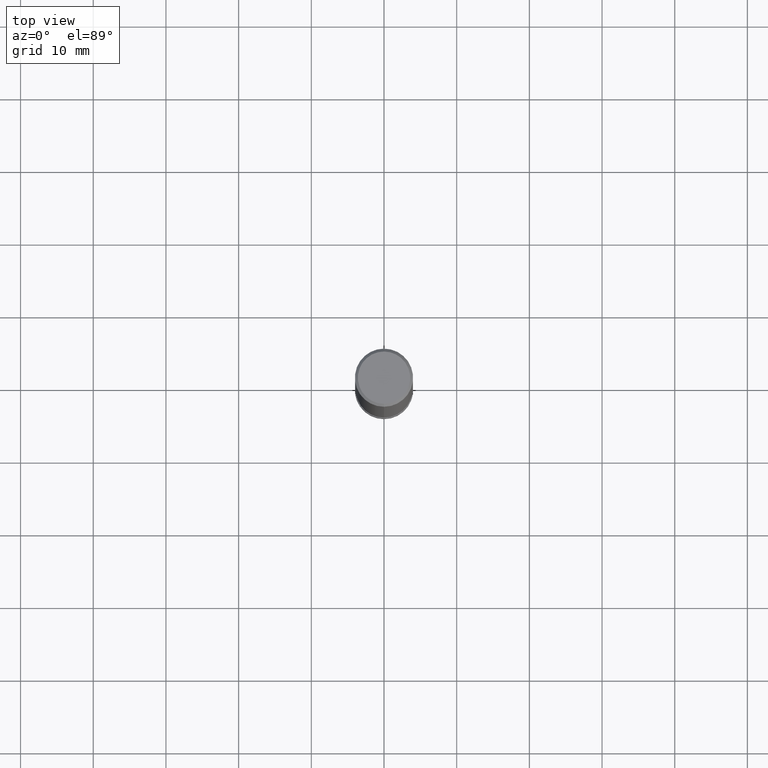
[diagram: clean part render]
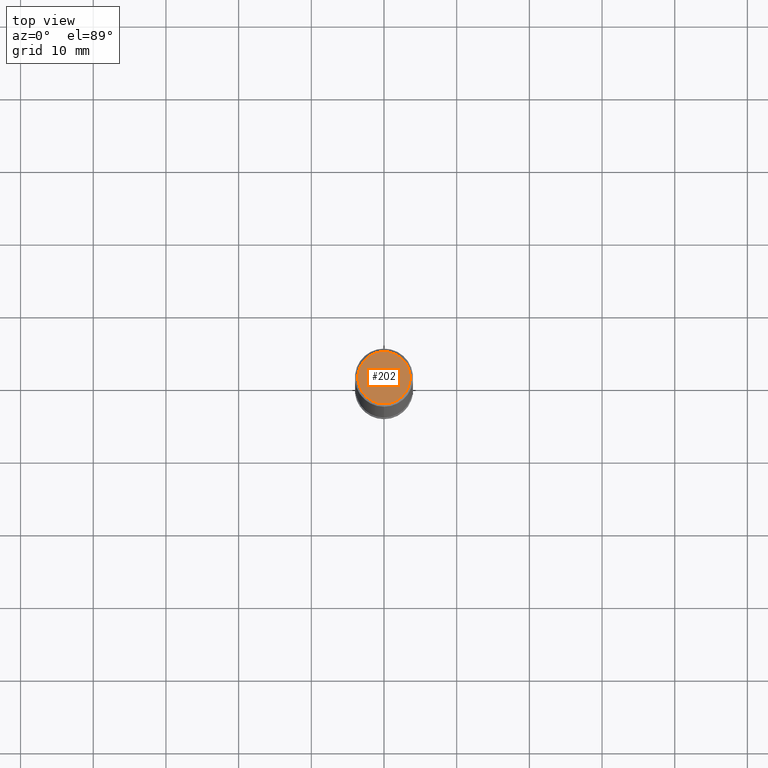
[diagram: same view with one face highlighted and labeled with its STEP entity id]
A machine part, top view. The second image highlights one B-rep face of the part: STEP entity #202.
In plain terms, the highlighted planar face has unit normal (-0, 0, 1).
Its self-contained STEP definition (entity closure, byte-faithful):
#96=VERTEX_POINT('',#233);
#114=EDGE_CURVE('',#152,#96,#255,.T.);
#152=VERTEX_POINT('',#296);
#186=EDGE_CURVE('',#96,#152,#333,.T.);
#202=ADVANCED_FACE('',(#351),#352,.T.);
#233=CARTESIAN_POINT('',(0.0,3.6,0.0));
#255=CIRCLE('',#406,3.6);
#296=CARTESIAN_POINT('',(4.40858287376056E-016,-3.6,0.0));
#333=CIRCLE('',#509,3.6);
#351=FACE_OUTER_BOUND('',#527,.T.);
#352=PLANE('',#528);
#406=AXIS2_PLACEMENT_3D('',#581,#582,#583);
#509=AXIS2_PLACEMENT_3D('',#672,#673,#674);
#527=EDGE_LOOP('',(#692,#693));
#528=AXIS2_PLACEMENT_3D('',#694,#695,#696);
#581=CARTESIAN_POINT('',(0.0,0.0,0.0));
#582=DIRECTION('',(0.0,0.0,-1.0));
#583=DIRECTION('',(0.0,1.0,0.0));
#672=CARTESIAN_POINT('',(0.0,0.0,0.0));
#673=DIRECTION('',(0.0,0.0,-1.0));
#674=DIRECTION('',(0.0,1.0,0.0));
#692=ORIENTED_EDGE('',*,*,#186,.F.);
#693=ORIENTED_EDGE('',*,*,#114,.F.);
#694=CARTESIAN_POINT('',(0.0,1.8,0.0));
#695=DIRECTION('',(-0.0,0.0,1.0));
#696=DIRECTION('',(0.0,-1.0,0.0));